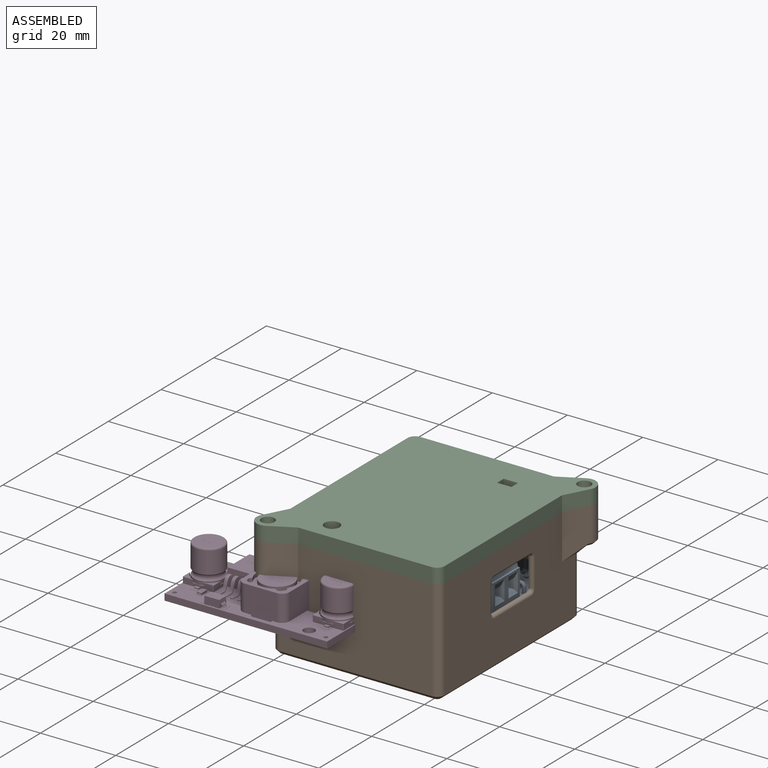
[diagram: assembled view]
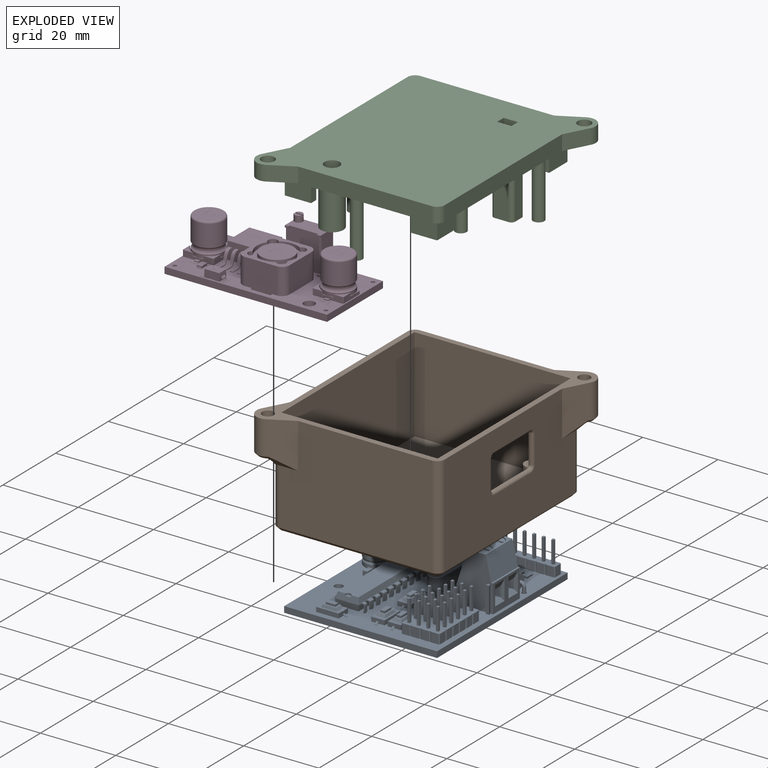
[diagram: exploded view]
GUIDED TOUR — FREECAD ASSEMBLY "case"

This assembly has 4 components, labeled P0..P3 below (a component is one placed body or linked part; the same part can appear more than once), held together by 0 modeled joints plus 6 derived contact edges. A joint is a constraint between two components; its type names the relative motion it leaves free:
  CONTACT — a derived adjacency edge — the two components touch in the source model (clearance under 2% of the assembly's diagonal); it is measured from the geometry, not a modeled constraint.
Axis/direction vectors are unit vectors and 'through' points are millimeter coordinates, both in the assembly's world frame.

MATES
  1. CONTACT "contact_0_1": P0 <-> P1, contact direction (0.000, 0.000, 1.000) through (4.40, 16.76, -1.55) mm (derived from contact, not a modeled constraint)
  2. CONTACT "contact_0_2": P0 <-> P2, contact direction (0.000, 0.000, 1.000) through (37.34, 43.98, 0.35) mm (derived from contact, not a modeled constraint)
  3. CONTACT "contact_0_3": P0 <-> P3, contact direction (0.000, 0.000, 1.000) through (10.20, 9.21, 2.23) mm (derived from contact, not a modeled constraint)
  4. CONTACT "contact_1_2": P1 <-> P2, contact direction (0.000, 0.000, 1.000) through (43.94, 1.51, 17.00) mm (derived from contact, not a modeled constraint)
  5. CONTACT "contact_1_3": P1 <-> P3, contact direction (-0.630, -0.776, 0.011) through (-2.20, -3.24, 8.05) mm (derived from contact, not a modeled constraint)
  6. CONTACT "contact_2_3": P2 <-> P3, contact direction (-0.630, -0.776, 0.011) through (3.61, 8.64, 11.85) mm (derived from contact, not a modeled constraint)

ASSEMBLY ORDER
  1. P0 — the base component [order heuristic]
  2. P1 [order heuristic]
  3. P2 [order heuristic]
  4. P3 [order heuristic]
Order-tag legend:
  [order heuristic] — this assembly is geometrically interlocked (no collision-free removal order exists), so components are listed in mate-graph order; insertion feasibility is not verified.

Of the 4 components, 2 carry a construction recipe — the FreeCAD feature program (sketches with constraints, then the solid features that consume them) that regenerates the part from scratch, quoted from this document or from the linked companion document it references; the rest are supplied as boundary geometry only. The tour below walks the components in assembly order: each is shown spotlighted twice — in the assembled view, then in the exploded view, where a leader line traces a displaced component back to its assembled socket (components that stay in place when exploded have no leader line; saturated green if recipe-attached, orange if geometry-only; every other component desaturated gray) — followed by its recipe or geometry summary and the mates that hold it.
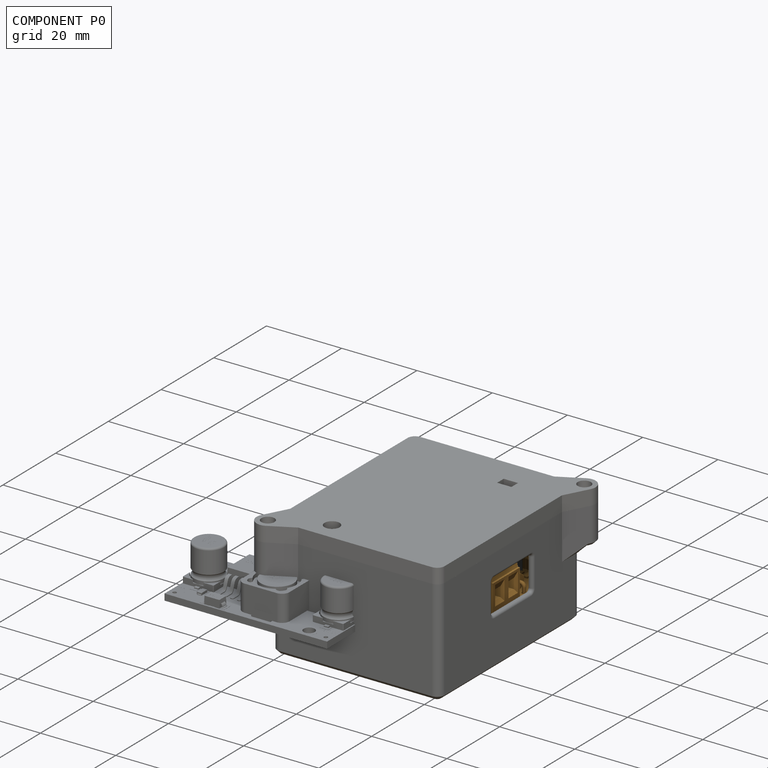
[diagram: component P0 — assembled]
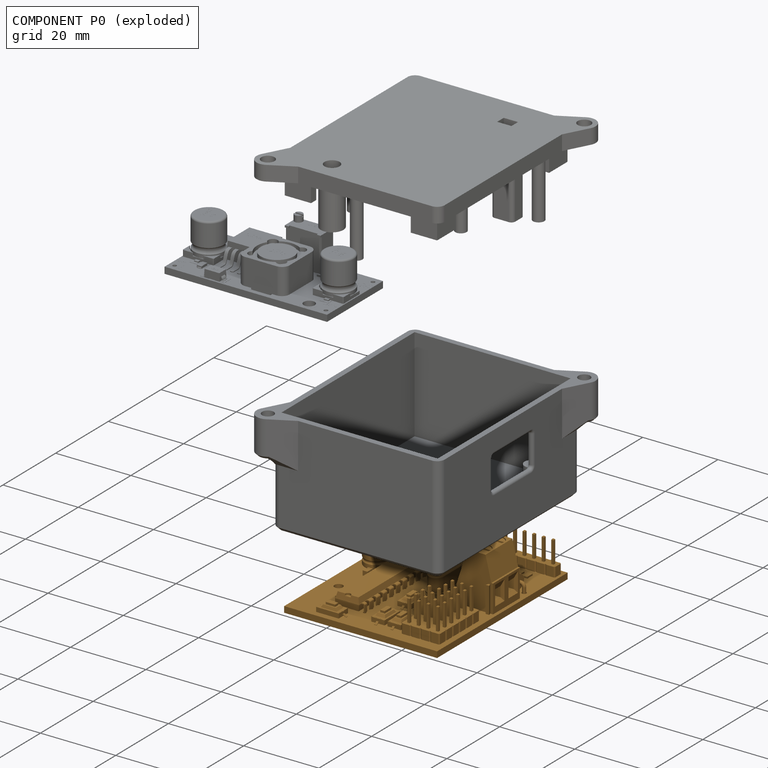
[diagram: component P0 — exploded]
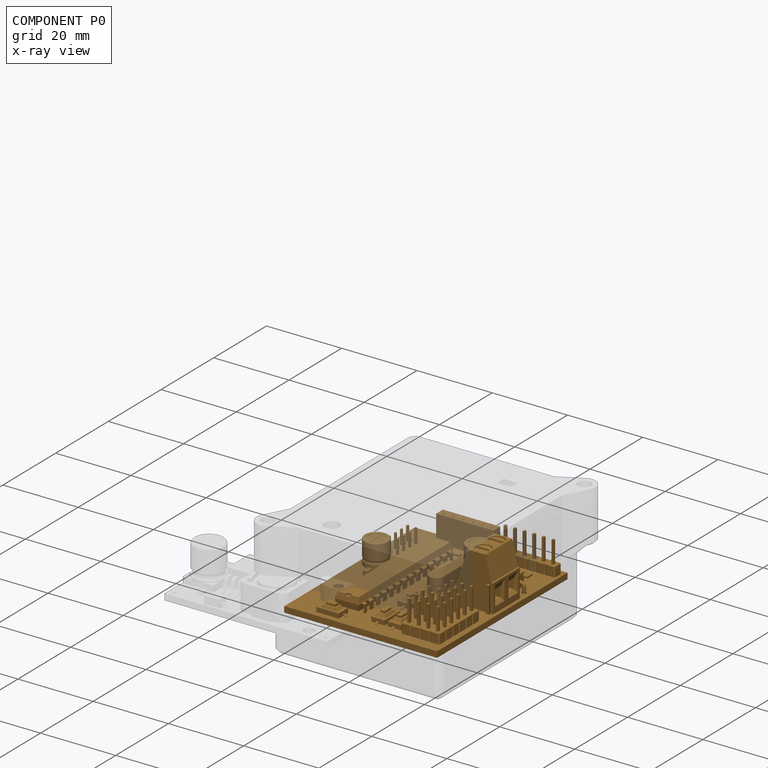
[diagram: component P0 — x-ray view]
COMPONENT P0 — geometry summary ("RC Reciever"; no construction recipe available for this part):
  bounding box: 49.5 x 40.6 x 20.5 mm
  tessellated surface: 113,986 triangles
  volume: 7017 mm^3 (17% of its bounding box)
Held by: resting contact with P1 (derived edge); resting contact with P2 (derived edge); resting contact with P3 (derived edge).
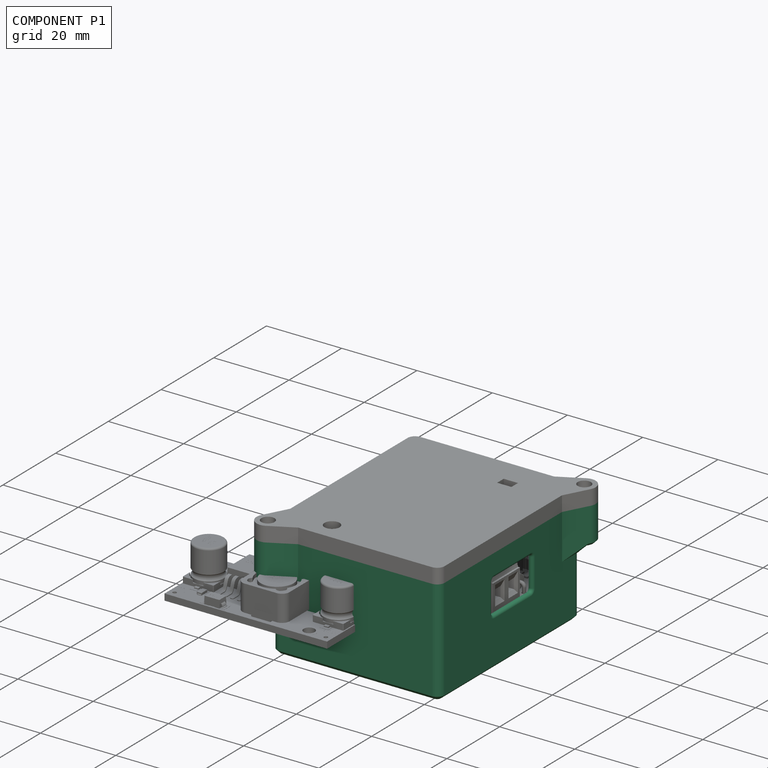
[diagram: component P1 — assembled]
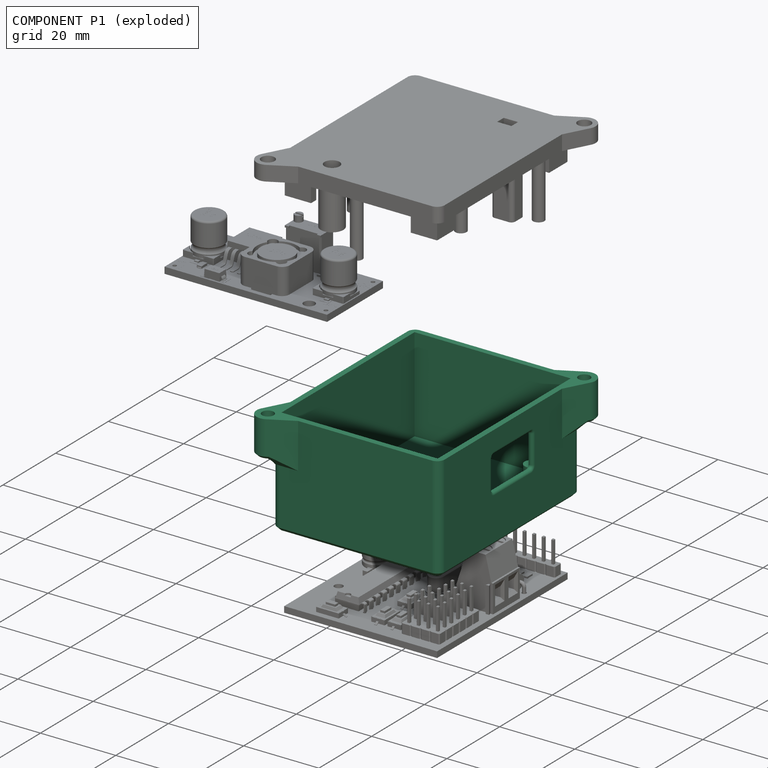
[diagram: component P1 — exploded]
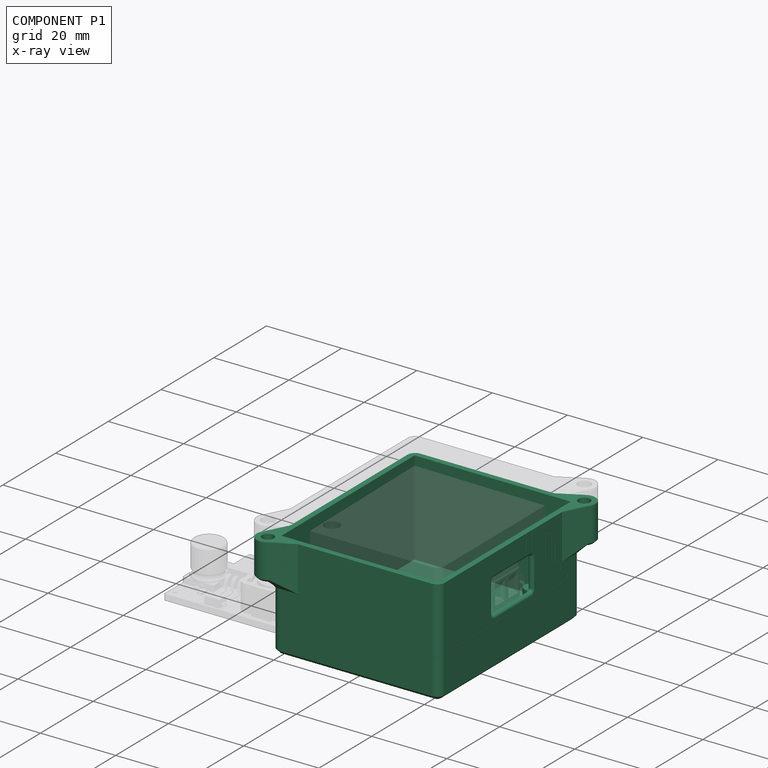
[diagram: component P1 — x-ray view]
COMPONENT P1 — recipe-attached ("Body", modeled in this document).
Held by: resting contact with P0 (derived edge); resting contact with P2 (derived edge); resting contact with P3 (derived edge).
Construction recipe (the document's own serialized feature program — sketch geometry with constraints, then the solid features built on it; lengths are millimeters unless a unit is written):

FEATURE [Sketcher::SketchObject] Sketch
  FullyConstrained = true
  MapMode = 5
  Support = -> [XY_Plane009]
  sketch-geometry (4):
    g0: LineSegment StartX=0 StartY=0 StartZ=0 EndX=44.5 EndY=0 EndZ=0
    g1: LineSegment StartX=44.5 StartY=0 StartZ=0 EndX=44.5 EndY=53.5 EndZ=0
    g2: LineSegment StartX=44.5 StartY=53.5 StartZ=0 EndX=0 EndY=53.5 EndZ=0
    g3: LineSegment StartX=0 StartY=53.5 StartZ=0 EndX=0 EndY=0 EndZ=0
  constraints (11):
    c: Coincident(g0,g1)
    c: Coincident(g1,g2)
    c: Coincident(g2,g3)
    c: Coincident(g3,g0)
    c: Horizontal(g0)
    c: Horizontal(g2)
    c: Vertical(g1)
    c: Vertical(g3)
    c: Coincident(g0,g-1)
    c: Distance(g2) = 44.5
    c: Distance(g1) = 53.5
FEATURE [PartDesign::Pad] Pad
  Direction = (1,1,1)
  Length = 3
  Length2 = 100
  Profile = -> Sketch
  Type = 0
FEATURE [Sketcher::SketchObject] Sketch001
  ExternalGeometry = -> [Pad]
  FullyConstrained = true
  MapMode = 5
  Placement = pos=(0,0,3) rot=(0,0,1;0rad)
  Support = -> [Pad]
  sketch-geometry (8):
    g0: LineSegment StartX=1.5 StartY=1.5 StartZ=0 EndX=43 EndY=1.5 EndZ=0
    g1: LineSegment StartX=43 StartY=1.5 StartZ=0 EndX=43 EndY=52 EndZ=0
    g2: LineSegment StartX=43 StartY=52 StartZ=0 EndX=1.5 EndY=52 EndZ=0
    g3: LineSegment StartX=1.5 StartY=52 StartZ=0 EndX=1.5 EndY=1.5 EndZ=0
    g4: LineSegment StartX=0 StartY=53.5 StartZ=0 EndX=44.5 EndY=53.5 EndZ=0
    g5: LineSegment StartX=44.5 StartY=53.5 StartZ=0 EndX=44.5 EndY=0 EndZ=0
    g6: LineSegment StartX=44.5 StartY=0 StartZ=0 EndX=0 EndY=0 EndZ=0
    g7: LineSegment StartX=0 StartY=0 StartZ=0 EndX=0 EndY=53.5 EndZ=0
  constraints (22):
    c: Coincident(g0,g1)
    c: Coincident(g1,g2)
    c: Coincident(g2,g3)
    c: Coincident(g3,g0)
    c: Horizontal(g0)
    c: Horizontal(g2)
    c: Vertical(g1)
    c: Vertical(g3)
    c: Distance(g2,g-4) = 1.5
    c: Distance(g2,g-3) = 1.5
    c: Distance(g0,g-6) = 1.5
    c: Distance(g0,g-5) = 1.5
    c: Coincident(g4,g5)
    c: Coincident(g5,g6)
    c: Coincident(g6,g7)
    c: Coincident(g7,g4)
    c: Horizontal(g4)
    c: Horizontal(g6)
    c: Vertical(g5)
    c: Vertical(g7)
    c: Coincident(g4,g-4)
    c: Coincident(g5,g-6)
FEATURE [PartDesign::Pad] Pad001
  BaseFeature = -> Pad
  Direction = (1,1,1)
  Length = 28
  Length2 = 100
  Profile = -> Sketch001
  Refine = true
  Reversed = true
  Type = 0
FEATURE [Sketcher::SketchObject] Sketch002
  FullyConstrained = false
  MapMode = 5
  Placement = pos=(0,0,0) rot=(1,0,0;3.14159rad)
  Support = -> [Pad001]
  sketch-geometry (8):
    g0: Circle CenterX=5.14503 CenterY=-22.9592 CenterZ=0 NormalX=0 NormalY=0 NormalZ=1 AngleXU=0 Radius=2
    g1: Circle CenterX=16.3884 CenterY=-29.3044 CenterZ=0 NormalX=0 NormalY=0 NormalZ=1 AngleXU=0 Radius=2
    g2: Circle CenterX=5.90153 CenterY=-43.5894 CenterZ=0 NormalX=0 NormalY=0 NormalZ=1 AngleXU=0 Radius=2
    g3: Circle CenterX=38.8461 CenterY=-17.3179 CenterZ=0 NormalX=0 NormalY=0 NormalZ=1 AngleXU=0 Radius=3
    g4: Circle CenterX=18.5073 CenterY=-14.3945 CenterZ=0 NormalX=0 NormalY=0 NormalZ=1 AngleXU=0 Radius=2
    g5: Circle CenterX=23.796 CenterY=-4.27424 CenterZ=0 NormalX=0 NormalY=0 NormalZ=1 AngleXU=0 Radius=2
    g6: Circle CenterX=38.9322 CenterY=-5.00552 CenterZ=0 NormalX=0 NormalY=0 NormalZ=1 AngleXU=0 Radius=2
    g7: Circle CenterX=38.5296 CenterY=-27.6784 CenterZ=0 NormalX=0 NormalY=0 NormalZ=1 AngleXU=0 Radius=2
  constraints (8):
    c: Diameter(g6) = 4
    c: Equal(g0,g1)
    c: Equal(g1,g2)
    c: Equal(g2,g4)
    c: Equal(g4,g5)
    c: Equal(g5,g6)
    c: Diameter(g3) = 6
    c: Equal(g7,g4)
FEATURE [PartDesign::Pad] Pad002
  BaseFeature = -> Pad001
  Direction = (1,1,1)
  Length = 6.5
  Length2 = 100
  Profile = -> Sketch002
  Type = 0
FEATURE [Sketcher::SketchObject] Sketch003
  ExternalGeometry = -> [Pad002]
  FullyConstrained = true
  MapMode = 5
  Placement = pos=(0,0,-6.5) rot=(1,0,0;3.14159rad)
  Support = -> [Pad002]
  sketch-geometry (1):
    g0: Circle CenterX=38.8461 CenterY=-17.3179 CenterZ=0 NormalX=0 NormalY=0 NormalZ=1 AngleXU=0 Radius=0.75
  constraints (2):
    c: Coincident(g0,g-3)
    c: Diameter(g0) = 1.5
FEATURE [PartDesign::Pocket] Pocket
  BaseFeature = -> Pad002
  Length = 8
  Length2 = 100
  Profile = -> Sketch003
  Type = 0
FEATURE [Sketcher::SketchObject] Sketch004
  ExternalGeometry = -> [Pocket]
  FullyConstrained = true
  MapMode = 5
  Placement = pos=(0,0,-25) rot=(1,0,0;3.14159rad)
  Support = -> [Pocket]
  sketch-geometry (12):
    g0: ArcOfCircle CenterX=45.1213 CenterY=0.62132 CenterZ=0 NormalX=0 NormalY=0 NormalZ=1 AngleXU=0 Radius=3 StartAngle=5.79662 EndAngle=8.34055
    g1: ArcOfCircle CenterX=-0.62132 CenterY=-54.1213 CenterZ=0 NormalX=0 NormalY=0 NormalZ=1 AngleXU=0 Radius=3 StartAngle=2.65503 EndAngle=5.19895
    g2: LineSegment StartX=44.5 StartY=0 StartZ=0 EndX=45.1213 EndY=0.62132 EndZ=0
    g3: LineSegment StartX=0 StartY=-53.5 StartZ=0 EndX=-0.62132 EndY=-54.1213 EndZ=0
    g4: LineSegment StartX=0.781459 StartY=-56.7732 StartZ=0 EndX=6.96907 EndY=-53.5 EndZ=0
    g5: LineSegment StartX=-3.27315 StartY=-52.7185 StartZ=0 EndX=0 EndY=-46.5309 EndZ=0
    g6: LineSegment StartX=47.7732 StartY=-0.781459 StartZ=0 EndX=44.5 EndY=-6.96907 EndZ=0
    g7: LineSegment StartX=43.7185 StartY=3.27315 StartZ=0 EndX=37.5309 EndY=0 EndZ=0
    g8: LineSegment StartX=0 StartY=-46.5309 StartZ=0 EndX=0 EndY=-53.5 EndZ=0
    g9: LineSegment StartX=0 StartY=-53.5 StartZ=0 EndX=6.96907 EndY=-53.5 EndZ=0
    g10: LineSegment StartX=37.5309 StartY=0 StartZ=0 EndX=44.5 EndY=0 EndZ=0
    g11: LineSegment StartX=44.5 StartY=0 StartZ=0 EndX=44.5 EndY=-6.96907 EndZ=0
  constraints (30):
    c: PointOnObject(g-5,g0)
    c: PointOnObject(g-6,g1)
    c: Equal(g1,g0)
    c: Diameter(g1) = 6
    c: Coincident(g2,g-4)
    c: Coincident(g2,g0)
    c: Angle(g-4,g2) = 2.35619
    c: Coincident(g3,g-8)
    c: Coincident(g3,g1)
    c: Angle(g-8,g3) = 2.35619
    c: PointOnObject(g4,g-7)
    c: PointOnObject(g5,g-8)
    c: PointOnObject(g6,g-4)
    c: PointOnObject(g7,g-3)
    c: Equal(g7,g6)
    c: Equal(g6,g5)
    c: Equal(g5,g4)
    c: Distance(g6) = 7
    c: Tangent(g0,g6) = 1.5708
    c: Tangent(g0,g7) = -1.5708
    c: Tangent(g1,g5) = 1.5708
    c: Tangent(g1,g4) = -1.5708
    c: Coincident(g8,g5)
    c: Coincident(g8,g3)
    c: Coincident(g9,g8)
    c: Coincident(g9,g4)
    c: Coincident(g10,g7)
    c: Coincident(g10,g2)
    c: Coincident(g11,g10)
    c: Coincident(g11,g6)
FEATURE [PartDesign::Pad] Pad003
  BaseFeature = -> Pocket
  Direction = (1,1,1)
  Length = 10
  Length2 = 100
  Profile = -> Sketch004
  Reversed = true
  Type = 0
FEATURE [PartDesign::Chamfer] Chamfer
  Angle = 45
  Base = -> Pad003 [Edge32,Edge18,Edge22,Edge29]
  BaseFeature = -> Pad003
  ChamferType = 0
  FlipDirection = false
  Refine = true
  Size = 2
  Size2 = 1
  SupportTransform = false
FEATURE [Sketcher::SketchObject] Sketch005
  ExternalGeometry = -> [Chamfer]
  FullyConstrained = true
  MapMode = 5
  Placement = pos=(0,0,-25) rot=(1,0,0;3.14159rad)
  Support = -> [Chamfer]
  sketch-geometry (2):
    g0: Circle CenterX=-0.62132 CenterY=-54.1213 CenterZ=0 NormalX=0 NormalY=0 NormalZ=1 AngleXU=0 Radius=1.55
    g1: Circle CenterX=45.1213 CenterY=0.62132 CenterZ=0 NormalX=0 NormalY=0 NormalZ=1 AngleXU=0 Radius=1.55
  constraints (4):
    c: Coincident(g0,g-4)
    c: Diameter(g0) = 3.1
    c: Coincident(g1,g-3)
    c: Diameter(g1) = 3.1
FEATURE [PartDesign::Pocket] Pocket001
  BaseFeature = -> Chamfer
  Length = 12
  Length2 = 100
  Profile = -> Sketch005
  Type = 0
FEATURE [PartDesign::Chamfer] Chamfer001
  Angle = 45
  Base = -> Pocket001 [Edge64,Edge54]
  BaseFeature = -> Pocket001
  ChamferType = 0
  FlipDirection = false
  Size = 1
  Size2 = 1
  SupportTransform = false
FEATURE [Sketcher::SketchObject] Sketch006
  FullyConstrained = false
  MapMode = 5
  Placement = pos=(0,0,-15) rot=(0,0,1;0rad)
  Support = -> [Chamfer001]
  sketch-geometry (8):
    g0: LineSegment StartX=-2.66547 StartY=56.4105 StartZ=0 EndX=-0.96287 EndY=56.4105 EndZ=0
    g1: LineSegment StartX=-0.96287 StartY=56.4105 StartZ=0 EndX=-0.96287 EndY=54.3115 EndZ=0
    g2: LineSegment StartX=-0.96287 StartY=54.3115 StartZ=0 EndX=-2.66547 EndY=54.3115 EndZ=0
    g3: LineSegment StartX=-2.66547 StartY=54.3115 StartZ=0 EndX=-2.66547 EndY=56.4105 EndZ=0
    g4: LineSegment StartX=45.2052 StartY=-0.882229 StartZ=0 EndX=47.4153 EndY=-0.882229 EndZ=0
    g5: LineSegment StartX=47.4153 StartY=-0.882229 StartZ=0 EndX=47.4153 EndY=-2.57907 EndZ=0
    g6: LineSegment StartX=47.4153 StartY=-2.57907 StartZ=0 EndX=45.2052 EndY=-2.57907 EndZ=0
    g7: LineSegment StartX=45.2052 StartY=-2.57907 StartZ=0 EndX=45.2052 EndY=-0.882229 EndZ=0
  constraints (16):
    c: Coincident(g0,g1)
    c: Coincident(g1,g2)
    c: Coincident(g2,g3)
    c: Coincident(g3,g0)
    c: Horizontal(g0)
    c: Horizontal(g2)
    c: Vertical(g1)
    c: Vertical(g3)
    c: Coincident(g4,g5)
    c: Coincident(g5,g6)
    c: Coincident(g6,g7)
    c: Coincident(g7,g4)
    c: Horizontal(g4)
    c: Horizontal(g6)
    c: Vertical(g5)
    c: Vertical(g7)
FEATURE [PartDesign::Pocket] Pocket002
  BaseFeature = -> Chamfer001
  Length = 5
  Length2 = 100
  Profile = -> Sketch006
  Refine = true
  Reversed = true
  Type = 0
FEATURE [PartDesign::Chamfer] Chamfer002
  Angle = 45
  Base = -> Pocket002 [Edge29,Edge95]
  BaseFeature = -> Pocket002
  ChamferType = 0
  FlipDirection = false
  Size = 0.4
  Size2 = 1
  SupportTransform = false
FEATURE [Sketcher::SketchObject] Sketch007
  ExternalGeometry = -> [Chamfer002]
  FullyConstrained = true
  MapMode = 5
  Placement = pos=(0,0,3) rot=(0,0,1;0rad)
  Support = -> [Chamfer002]
  sketch-geometry (12):
    g0: ArcOfCircle CenterX=42.5 CenterY=51.5 CenterZ=0 NormalX=0 NormalY=0 NormalZ=1 AngleXU=0 Radius=2 StartAngle=1.8e-15 EndAngle=1.5708
    g1: ArcOfCircle CenterX=2 CenterY=51.5 CenterZ=0 NormalX=0 NormalY=0 NormalZ=1 AngleXU=0 Radius=2 StartAngle=1.5708 EndAngle=3.14159
    g2: ArcOfCircle CenterX=2 CenterY=2 CenterZ=0 NormalX=0 NormalY=0 NormalZ=1 AngleXU=0 Radius=2 StartAngle=3.14159 EndAngle=4.71239
    g3: ArcOfCircle CenterX=42.5 CenterY=2 CenterZ=0 NormalX=0 NormalY=0 NormalZ=1 AngleXU=0 Radius=2 StartAngle=4.71239 EndAngle=6.28319
    g4: LineSegment StartX=42.5 StartY=0 StartZ=0 EndX=44.5 EndY=0 EndZ=0
    g5: LineSegment StartX=44.5 StartY=2 StartZ=0 EndX=44.5 EndY=0 EndZ=0
    g6: LineSegment StartX=44.5 StartY=51.5 StartZ=0 EndX=44.5 EndY=53.5 EndZ=0
    g7: LineSegment StartX=44.5 StartY=53.5 StartZ=0 EndX=42.5 EndY=53.5 EndZ=0
    g8: LineSegment StartX=0 StartY=53.5 StartZ=0 EndX=2 EndY=53.5 EndZ=0
    g9: LineSegment StartX=0 StartY=51.5 StartZ=0 EndX=0 EndY=53.5 EndZ=0
    g10: LineSegment StartX=0 StartY=2 StartZ=0 EndX=0 EndY=0 EndZ=0
    g11: LineSegment StartX=0 StartY=0 StartZ=0 EndX=2 EndY=1.528e-13 EndZ=0
  constraints (36):
    c: Coincident(g7,g0) = 1.5708
    c: Coincident(g6,g0) = 1.5708
    c: Coincident(g8,g1) = 1.5708
    c: Coincident(g9,g1) = 1.5708
    c: Coincident(g10,g2) = 1.5708
    c: Coincident(g11,g2) = 1.5708
    c: Coincident(g4,g3) = 1.5708
    c: Coincident(g5,g3) = 1.5708
    c: Distance(g6,g0) = 2
    c: PointOnObject(g6,g-5)
    c: PointOnObject(g7,g-3)
    c: PointOnObject(g9,g-4)
    c: Distance(g1,g8) = 2
    c: PointOnObject(g11,g-6)
    c: Distance(g2,g11) = 2
    c: Distance(g3,g4) = 2
    c: Coincident(g4,g-6)
    c: Horizontal(g4)
    c: Coincident(g5,g4)
    c: Vertical(g5)
    c: Coincident(g6,g-5)
    c: Coincident(g7,g6)
    c: Coincident(g8,g-4)
    c: Horizontal(g8)
    c: Coincident(g9,g8)
    c: Coincident(g10,g-1)
    c: Vertical(g10)
    c: Coincident(g11,g10)
    c: Distance(g8) = 2
    c: Equal(g8,g9)
    c: Equal(g9,g10)
    c: Equal(g10,g11)
    c: Equal(g11,g4)
    c: Equal(g4,g5)
    c: Equal(g5,g6)
    c: Equal(g6,g7)
FEATURE [PartDesign::Pocket] Pocket003
  BaseFeature = -> Chamfer002
  Length = 16
  Length2 = 100
  Profile = -> Sketch007
  Type = 0
FEATURE [PartDesign::Pocket] Pocket004
  BaseFeature = -> Pocket003
  Length = 12
  Length2 = 100
  Profile = -> Pocket003 [Face20]
  Type = 0
FEATURE [PartDesign::Pocket] Pocket005
  BaseFeature = -> Pocket004
  Length = 12
  Length2 = 100
  Profile = -> Pocket004 [Face36]
  Refine = true
  Type = 0
FEATURE [Sketcher::SketchObject] Sketch012
  ExternalGeometry = -> [Pocket005]
  FullyConstrained = false
  MapMode = 5
  Placement = pos=(0,0,0) rot=(0.57735,-0.57735,-0.57735;2.0944rad)
  Support = -> [Pocket005]
  sketch-geometry (4):
    g0: LineSegment StartX=-35.5 StartY=-10 StartZ=0 EndX=-20.1065 EndY=-10 EndZ=0
    g1: LineSegment StartX=-20.1065 StartY=-10 StartZ=0 EndX=-20.1065 EndY=-19 EndZ=0
    g2: LineSegment StartX=-20.1065 StartY=-19 StartZ=0 EndX=-35.5 EndY=-19 EndZ=0
    g3: LineSegment StartX=-35.5 StartY=-19 StartZ=0 EndX=-35.5 EndY=-10 EndZ=0
  constraints (11):
    c: Coincident(g0,g1)
    c: Coincident(g1,g2)
    c: Coincident(g2,g3)
    c: Coincident(g3,g0)
    c: Horizontal(g0)
    c: Horizontal(g2)
    c: Vertical(g1)
    c: Vertical(g3)
    c: Distance(g0,g-3) = 13
    c: Distance(g1) = 9
    c: Distance(g0,g-4) = 18
FEATURE [PartDesign::Pocket] Pocket009
  BaseFeature = -> Pocket005
  Length = 2
  Length2 = 100
  Profile = -> Sketch012
  Type = 0
FEATURE [PartDesign::Fillet] Fillet001
  Base = -> Pocket009 [Face38,Face37,Face36,Face35]
  BaseFeature = -> Pocket009
  Radius = 0.74
  SupportTransform = false
FEATURE [PartDesign::Chamfer] Chamfer003
  Angle = 45
  Base = -> Fillet001 [Edge39]
  BaseFeature = -> Fillet001
  ChamferType = 0
  FlipDirection = false
  Size = 1
  Size2 = 1
  SupportTransform = false
FEATURE [PartDesign::Body] Body
  Group = -> [Sketch,Pad,Sketch001,Pad001,Sketch002,Pad002,Sketch003,Pocket,Sketch004,Pad003,Chamfer,Sketch005,Pocket001,Chamfer001,Sketch006,Pocket002,Chamfer002,Sketch007,Pocket003,Pocket004,Pocket005,Sketch012,Pocket009,Fillet001,Chamfer003]
  Origin = -> Origin009
  Placement = pos=(44,0,-8) rot=(0,1,0;3.14159rad)
  Tip = -> Chamfer003
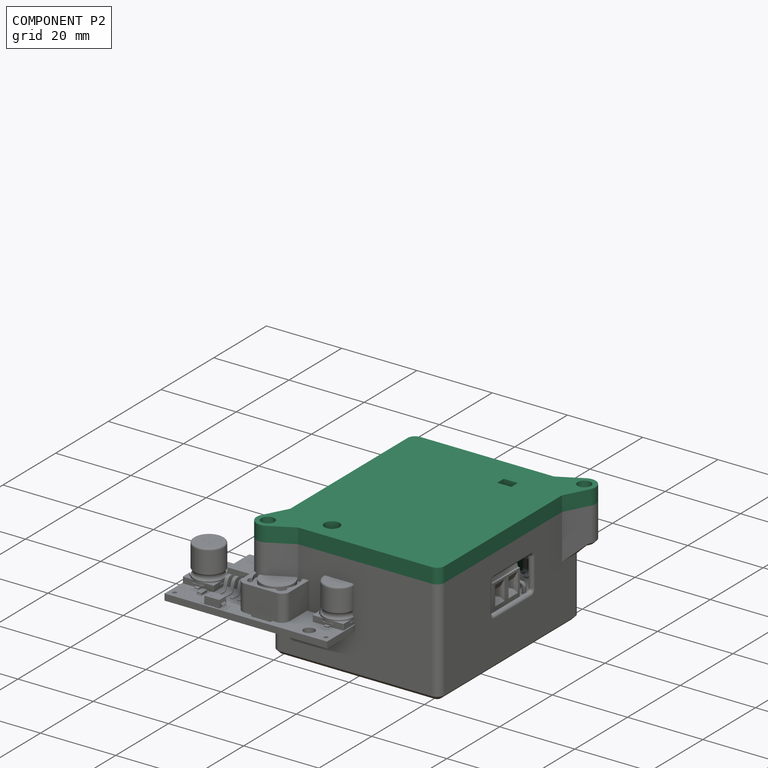
[diagram: component P2 — assembled]
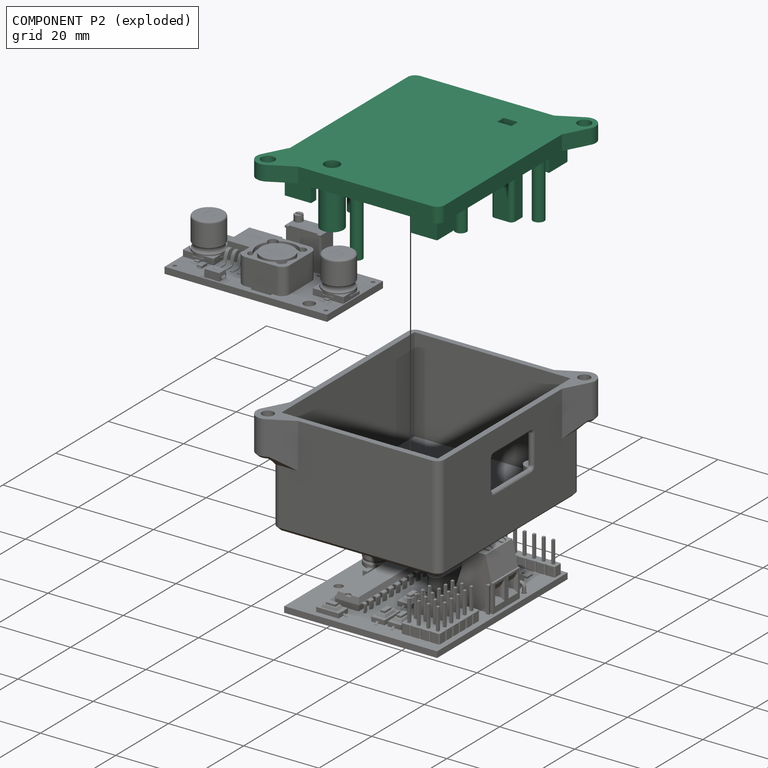
[diagram: component P2 — exploded]
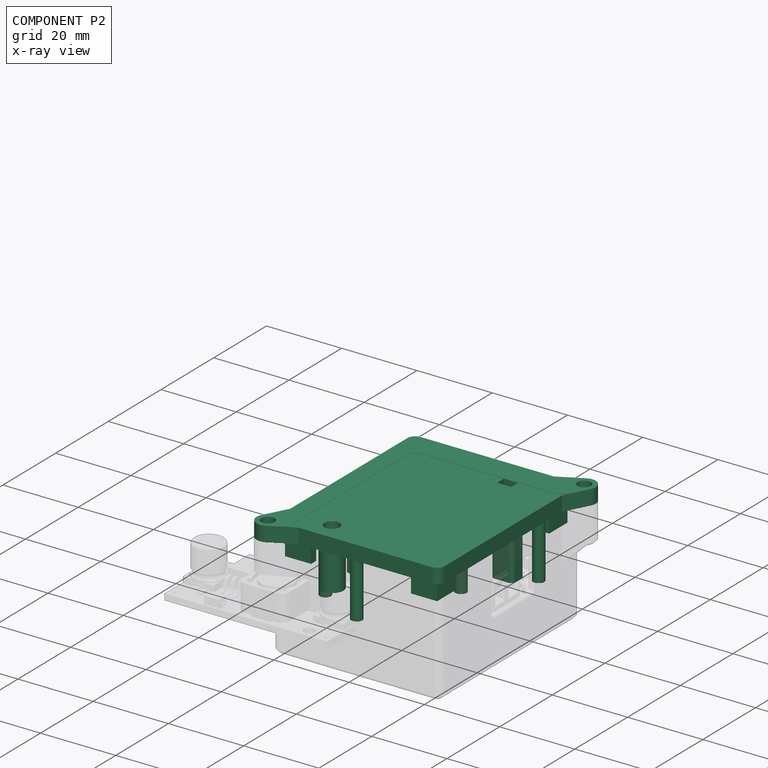
[diagram: component P2 — x-ray view]
COMPONENT P2 — recipe-attached ("Lit", modeled in this document).
Held by: resting contact with P0 (derived edge); resting contact with P1 (derived edge); resting contact with P3 (derived edge).
Construction recipe (the document's own serialized feature program — sketch geometry with constraints, then the solid features built on it; lengths are millimeters unless a unit is written):

FEATURE [Sketcher::SketchObject] Sketch008
  FullyConstrained = true
  MapMode = 5
  Support = -> [XY_Plane011]
  sketch-geometry (22):
    g0: LineSegment StartX=0 StartY=0 StartZ=0 EndX=44.5 EndY=0 EndZ=0
    g1: LineSegment StartX=44.5 StartY=0 StartZ=0 EndX=44.5 EndY=53.5 EndZ=0
    g2: LineSegment StartX=44.5 StartY=53.5 StartZ=0 EndX=0 EndY=53.5 EndZ=0
    g3: LineSegment StartX=0 StartY=53.5 StartZ=0 EndX=0 EndY=0 EndZ=0
    g4: LineSegment StartX=1.5 StartY=1.5 StartZ=0 EndX=43 EndY=1.5 EndZ=0
    g5: LineSegment StartX=43 StartY=1.5 StartZ=0 EndX=43 EndY=52 EndZ=0
    g6: LineSegment StartX=43 StartY=52 StartZ=0 EndX=1.5 EndY=52 EndZ=0
    g7: LineSegment StartX=1.5 StartY=52 StartZ=0 EndX=1.5 EndY=1.5 EndZ=0
    g8: ArcOfCircle CenterX=-0.622254 CenterY=-0.622254 CenterZ=0 NormalX=0 NormalY=0 NormalZ=1 AngleXU=0 Radius=3 StartAngle=2.6549 EndAngle=5.19908
    g9: ArcOfCircle CenterX=45.1223 CenterY=54.1223 CenterZ=0 NormalX=0 NormalY=0 NormalZ=1 AngleXU=0 Radius=3 StartAngle=5.7965 EndAngle=8.34067
    g10: LineSegment StartX=44.5 StartY=53.5 StartZ=0 EndX=45.1223 EndY=54.1223 EndZ=0
    g11: LineSegment StartX=0 StartY=0 StartZ=0 EndX=-0.622254 EndY=-0.622254 EndZ=0
    g12: LineSegment StartX=-3.27391 StartY=0.780852 StartZ=0 EndX=0 EndY=6.96806 EndZ=0
    g13: LineSegment StartX=0.780852 StartY=-3.27391 StartZ=0 EndX=6.96806 EndY=0 EndZ=0
    g14: LineSegment StartX=47.7739 StartY=52.7191 StartZ=0 EndX=44.5 EndY=46.5319 EndZ=0
    g15: LineSegment StartX=43.7191 StartY=56.7739 StartZ=0 EndX=37.5319 EndY=53.5 EndZ=0
    g16: LineSegment StartX=37.5319 StartY=53.5 StartZ=0 EndX=2 EndY=53.5 EndZ=0
    g17: LineSegment StartX=0 StartY=51.5 StartZ=0 EndX=0 EndY=6.96806 EndZ=0
    g18: LineSegment StartX=6.96806 StartY=0 StartZ=0 EndX=42.5 EndY=0 EndZ=0
    g19: LineSegment StartX=44.5 StartY=2 StartZ=0 EndX=44.5 EndY=46.5319 EndZ=0
    g20: ArcOfCircle CenterX=2 CenterY=51.5 CenterZ=0 NormalX=0 NormalY=0 NormalZ=1 AngleXU=0 Radius=2 StartAngle=1.5708 EndAngle=3.14159
    g21: ArcOfCircle CenterX=42.5 CenterY=2 CenterZ=0 NormalX=0 NormalY=0 NormalZ=1 AngleXU=0 Radius=2 StartAngle=4.71239 EndAngle=6.28319
  constraints (59):
    c: Coincident(g0,g1)
    c: Coincident(g1,g2)
    c: Coincident(g2,g3)
    c: Coincident(g3,g0)
    c: Horizontal(g0)
    c: Horizontal(g2)
    c: Vertical(g1)
    c: Vertical(g3)
    c: Distance(g3) = 53.5
    c: Distance(g0) = 44.5
    c: Coincident(g4,g5)
    c: Coincident(g5,g6)
    c: Coincident(g6,g7)
    c: Coincident(g7,g4)
    c: Horizontal(g4)
    c: Horizontal(g6)
    c: Vertical(g5)
    c: Vertical(g7)
    c: Distance(g6,g3) = 1.5
    c: Distance(g6,g2) = 1.5
    c: Distance(g4,g0) = 1.5
    c: Distance(g4,g1) = 1.5
    c: Coincident(g0,g-1)
    c: Equal(g8,g9)
    c: Diameter(g8) = 6
    c: Coincident(g10,g1)
    c: Coincident(g10,g9)
    c: Angle(g10,g2) = 2.35619
    c: Coincident(g11,g-1)
    c: Coincident(g11,g8)
    c: Angle(g3,g11) = 2.35619
    c: PointOnObject(g12,g3)
    c: PointOnObject(g13,g0)
    c: PointOnObject(g14,g1)
    c: PointOnObject(g15,g2)
    c: Equal(g15,g14)
    c: Equal(g14,g13)
    c: Equal(g13,g12)
    c: Distance(g12) = 7
    c: Tangent(g8,g12) = 1.5708
    c: Tangent(g8,g13) = -1.5708
    c: Tangent(g9,g15) = -1.5708
    c: Tangent(g9,g14) = 1.5708
    c: Equal(g11,g10)
    c: Distance(g10) = 0.88
    c: Coincident(g16,g15)
    c: Coincident(g17,g12)
    c: Coincident(g18,g13)
    c: Coincident(g19,g14)
    c: Tangent(g16,g20) = -1.5708
    c: Tangent(g17,g20) = -1.5708
    c: Distance(g16,g20) = 2
    c: PointOnObject(g16,g2)
    c: PointOnObject(g17,g3)
    c: Tangent(g19,g21) = -1.5708
    c: Tangent(g18,g21) = -1.5708
    c: Distance(g21,g18) = 2
    c: PointOnObject(g18,g0)
    c: PointOnObject(g19,g1)
FEATURE [PartDesign::Pad] Pad004
  Direction = (1,1,1)
  Length = 2
  Length2 = 100
  Profile = -> Sketch008
  Type = 0
FEATURE [Sketcher::SketchObject] Sketch009
  ExternalGeometry = -> [Pad004]
  FullyConstrained = true
  MapMode = 5
  Placement = pos=(0,0,0) rot=(1,0,0;3.14159rad)
  Support = -> [Pad004]
  sketch-geometry (8):
    g0: LineSegment StartX=1.5 StartY=-52 StartZ=0 EndX=43 EndY=-52 EndZ=0
    g1: LineSegment StartX=43 StartY=-52 StartZ=0 EndX=43 EndY=-1.5 EndZ=0
    g2: LineSegment StartX=43 StartY=-1.5 StartZ=0 EndX=1.5 EndY=-1.5 EndZ=0
    g3: LineSegment StartX=1.5 StartY=-1.5 StartZ=0 EndX=1.5 EndY=-52 EndZ=0
    g4: LineSegment StartX=2 StartY=-51.5 StartZ=0 EndX=42.5 EndY=-51.5 EndZ=0
    g5: LineSegment StartX=42.5 StartY=-51.5 StartZ=0 EndX=42.5 EndY=-2 EndZ=0
    g6: LineSegment StartX=42.5 StartY=-2 StartZ=0 EndX=2 EndY=-2 EndZ=0
    g7: LineSegment StartX=2 StartY=-2 StartZ=0 EndX=2 EndY=-51.5 EndZ=0
  constraints (24):
    c: Coincident(g0,g1)
    c: Coincident(g1,g2)
    c: Coincident(g2,g3)
    c: Coincident(g3,g0)
    c: Horizontal(g0)
    c: Horizontal(g2)
    c: Vertical(g1)
    c: Vertical(g3)
    c: Distance(g1,g-4) = 1.5
    c: Distance(g1,g-5) = 1.5
    c: Distance(g0,g-3) = 1.5
    c: Distance(g0,g-6) = 1.5
    c: Coincident(g4,g5)
    c: Coincident(g5,g6)
    c: Coincident(g6,g7)
    c: Coincident(g7,g4)
    c: Horizontal(g4)
    c: Horizontal(g6)
    c: Vertical(g5)
    c: Vertical(g7)
    c: Distance(g5,g2) = 0.5
    c: Distance(g5,g1) = 0.5
    c: Distance(g4,g3) = 0.5
    c: Distance(g4,g0) = 0.5
FEATURE [PartDesign::Pad] Pad005
  BaseFeature = -> Pad004
  Direction = (1,1,1)
  Length = 2
  Length2 = 100
  Profile = -> Sketch009
  Type = 0
FEATURE [Sketcher::SketchObject] Sketch010
  FullyConstrained = false
  MapMode = 5
  Placement = pos=(0,0,-2) rot=(1,0,0;3.14159rad)
  Support = -> [Pad005]
  sketch-geometry (14):
    g0: Circle CenterX=6.2131 CenterY=-11.4205 CenterZ=0 NormalX=0 NormalY=0 NormalZ=1 AngleXU=0 Radius=1.5
    g1: Circle CenterX=5.82073 CenterY=-48.9905 CenterZ=0 NormalX=0 NormalY=0 NormalZ=1 AngleXU=0 Radius=1.5
    g2: Circle CenterX=4.34932 CenterY=-24.8594 CenterZ=0 NormalX=0 NormalY=0 NormalZ=1 AngleXU=0 Radius=1.5
    g3: Circle CenterX=18.9285 CenterY=-5.17733 CenterZ=0 NormalX=0 NormalY=0 NormalZ=1 AngleXU=0 Radius=1.5
    g4: Circle CenterX=29.4083 CenterY=-29.7198 CenterZ=0 NormalX=0 NormalY=0 NormalZ=1 AngleXU=0 Radius=1.5
    g5: Circle CenterX=40.0379 CenterY=-44.0557 CenterZ=0 NormalX=0 NormalY=0 NormalZ=1 AngleXU=0 Radius=1.5
    g6: LineSegment StartX=28.2188 StartY=-47.2518 StartZ=0 EndX=34.0216 EndY=-47.2518 EndZ=0
    g7: LineSegment StartX=34.0216 StartY=-47.2518 StartZ=0 EndX=34.0216 EndY=-42.7518 EndZ=0
    g8: LineSegment StartX=34.0216 StartY=-42.7518 StartZ=0 EndX=28.2188 EndY=-42.7518 EndZ=0
    g9: LineSegment StartX=28.2188 StartY=-42.7518 StartZ=0 EndX=28.2188 EndY=-47.2518 EndZ=0
    g10: LineSegment StartX=29.2188 StartY=-43.7518 StartZ=0 EndX=33.0216 EndY=-43.7518 EndZ=0
    g11: LineSegment StartX=33.0216 StartY=-43.7518 StartZ=0 EndX=33.0216 EndY=-46.2518 EndZ=0
    g12: LineSegment StartX=33.0216 StartY=-46.2518 StartZ=0 EndX=29.2188 EndY=-46.2518 EndZ=0
    g13: LineSegment StartX=29.2188 StartY=-46.2518 StartZ=0 EndX=29.2188 EndY=-43.7518 EndZ=0
  constraints (27):
    c: Coincident(g6,g7)
    c: Coincident(g7,g8)
    c: Coincident(g8,g9)
    c: Coincident(g9,g6)
    c: Horizontal(g6)
    c: Horizontal(g8)
    c: Vertical(g7)
    c: Vertical(g9)
    c: Distance(g9) = 4.5
    c: Coincident(g10,g11)
    c: Coincident(g11,g12)
    c: Coincident(g12,g13)
    c: Coincident(g13,g10)
    c: Horizontal(g10)
    c: Horizontal(g12)
    c: Vertical(g11)
    c: Vertical(g13)
    c: DistanceX(g6) = 34.0216
    c: DistanceY(g6) = -47.2518
    c: DistanceX(g8) = 28.2188
    c: Distance(g10,g8) = 1
    c: Distance(g10,g7) = 1
    c: Distance(g12,g6) = 1
    c: Distance(g12,g9) = 1
    c: Equal(g0, g2-g5) x4
    c: Equal(g0,g1)
    c: Diameter(g0) = 3
FEATURE [PartDesign::Pad] Pad006
  BaseFeature = -> Pad005
  Direction = (1,1,1)
  Length = 14.7
  Length2 = 100
  Profile = -> Sketch010
  Type = 0
FEATURE [PartDesign::Pocket] Pocket006
  BaseFeature = -> Pad006
  Length = 1
  Length2 = 100
  Profile = -> Pad006 [Face35]
  Type = 0
FEATURE [PartDesign::Pocket] Pocket007
  BaseFeature = -> Pocket006
  Length = 5
  Length2 = 100
  Profile = -> Pocket006 [Face41]
  Type = 0
FEATURE [PartDesign::Fillet] Fillet
  Base = -> Pocket007 [Edge91,Edge94,Edge89,Edge92]
  BaseFeature = -> Pocket007
  Radius = 1
  SupportTransform = false
FEATURE [Sketcher::SketchObject] Sketch011
  FullyConstrained = false
  MapMode = 5
  Placement = pos=(0,0,2) rot=(0,0,1;0rad)
  Support = -> [Fillet]
  sketch-geometry (1):
    g0: Circle CenterX=12.286 CenterY=5.28153 CenterZ=0 NormalX=0 NormalY=0 NormalZ=1 AngleXU=0 Radius=2
  constraints (1):
    c: Diameter(g0) = 4
FEATURE [PartDesign::Pocket] Pocket008
  BaseFeature = -> Fillet
  Length = 4
  Length2 = 100
  Profile = -> Sketch011
  Type = 0
FEATURE [Sketcher::SketchObject] Sketch013
  ExternalGeometry = -> [Pocket008]
  FullyConstrained = true
  MapMode = 5
  Placement = pos=(0,0,2) rot=(0,0,1;0rad)
  Support = -> [Pocket008]
  sketch-geometry (2):
    g0: Circle CenterX=-0.622254 CenterY=-0.622254 CenterZ=0 NormalX=0 NormalY=0 NormalZ=1 AngleXU=0 Radius=1.75
    g1: Circle CenterX=45.1223 CenterY=54.1223 CenterZ=0 NormalX=0 NormalY=0 NormalZ=1 AngleXU=0 Radius=1.75
  constraints (4):
    c: Coincident(g0,g-3)
    c: Diameter(g0) = 3.5
    c: Coincident(g1,g-4)
    c: Equal(g1,g0)
FEATURE [PartDesign::Pocket] Pocket010
  BaseFeature = -> Pocket008
  Length = 5
  Length2 = 100
  Profile = -> Sketch013
  Type = 0
FEATURE [PartDesign::Pocket] Pocket011
  BaseFeature = -> Pocket010
  Length = 2
  Length2 = 100
  Profile = -> Pocket010 [Face1]
  Type = 0
FEATURE [PartDesign::Pad] Pad007
  BaseFeature = -> Pocket011
  Direction = (1,1,1)
  Length = 2
  Length2 = 100
  Profile = -> Pocket011 [Face5]
  Type = 0
FEATURE [PartDesign::Pad] Pad008
  BaseFeature = -> Pad007
  Direction = (1,1,1)
  Length = 2
  Length2 = 100
  Profile = -> Pad007 [Face75]
  Type = 0
FEATURE [PartDesign::Pad] Pad009
  BaseFeature = -> Pad008
  Direction = (1,1,1)
  Length = 2
  Length2 = 100
  Profile = -> Pad008 [Face73]
  Type = 0
FEATURE [PartDesign::Pad] Pad010
  BaseFeature = -> Pad009
  Direction = (1,1,1)
  Length = 2
  Length2 = 100
  Profile = -> Pad009 [Face72]
  Type = 0
FEATURE [PartDesign::Pad] Pad011
  BaseFeature = -> Pad010
  Direction = (1,1,1)
  Length = 2
  Length2 = 100
  Profile = -> Pad010 [Face3]
  Type = 0
FEATURE [PartDesign::Pad] Pad012
  BaseFeature = -> Pad011
  Direction = (1,1,1)
  Length = 2
  Length2 = 100
  Profile = -> Pad011 [Face71]
  Type = 0
FEATURE [PartDesign::Pad] Pad013
  BaseFeature = -> Pad012
  Direction = (1,1,1)
  Length = 2
  Length2 = 100
  Profile = -> Pad012 [Face72]
  Type = 0
FEATURE [PartDesign::Pad] Pad014
  BaseFeature = -> Pad013
  Direction = (1,1,1)
  Length = 5
  Length2 = 100
  Profile = -> Pad013 [Face75]
  Type = 0
FEATURE [Sketcher::SketchObject] Sketch014
  ExternalGeometry = -> [Pad014]
  FullyConstrained = true
  MapMode = 5
  Placement = pos=(0,0,0) rot=(1,0,0;3.14159rad)
  Support = -> [Pad014]
  sketch-geometry (2):
    g0: Circle CenterX=12.286 CenterY=-5.28153 CenterZ=0 NormalX=0 NormalY=0 NormalZ=1 AngleXU=0 Radius=3
    g1: Circle CenterX=12.286 CenterY=-5.28153 CenterZ=0 NormalX=0 NormalY=0 NormalZ=1 AngleXU=0 Radius=2
  constraints (5):
    c: Coincident(g0,g-3)
    c: Diameter(g-3) = 4
    c: Diameter(g0) = 6
    c: Coincident(g1,g0)
    c: Equal(g1,g-3)
FEATURE [PartDesign::Pad] Pad015
  BaseFeature = -> Pad014
  Direction = (1,1,1)
  Length = 13
  Length2 = 100
  Profile = -> Sketch014
  Type = 0
FEATURE [Sketcher::SketchObject] Sketch015
  ExternalGeometry = -> [Pad015]
  FullyConstrained = true
  MapMode = 5
  Placement = pos=(0,0,0) rot=(1,0,0;3.14159rad)
  Support = -> [Pad015]
  sketch-geometry (24):
    g0: LineSegment StartX=4 StartY=-49.5 StartZ=0 EndX=4 EndY=-44.5 EndZ=0
    g1: LineSegment StartX=4 StartY=-44.5 StartZ=0 EndX=2 EndY=-44.5 EndZ=0
    g2: LineSegment StartX=2 StartY=-44.5 StartZ=0 EndX=2 EndY=-51.5 EndZ=0
    g3: LineSegment StartX=2 StartY=-51.5 StartZ=0 EndX=9 EndY=-51.5 EndZ=0
    g4: LineSegment StartX=9 StartY=-51.5 StartZ=0 EndX=9 EndY=-49.5 EndZ=0
    g5: LineSegment StartX=9 StartY=-49.5 StartZ=0 EndX=4 EndY=-49.5 EndZ=0
    g6: LineSegment StartX=2 StartY=-2 StartZ=0 EndX=9 EndY=-2 EndZ=0
    g7: LineSegment StartX=9 StartY=-2 StartZ=0 EndX=9 EndY=-4 EndZ=0
    g8: LineSegment StartX=9 StartY=-4 StartZ=0 EndX=4 EndY=-4 EndZ=0
    g9: LineSegment StartX=4 StartY=-4 StartZ=0 EndX=4 EndY=-9 EndZ=0
    g10: LineSegment StartX=4 StartY=-9 StartZ=0 EndX=2 EndY=-9 EndZ=0
    g11: LineSegment StartX=2 StartY=-9 StartZ=0 EndX=2 EndY=-2 EndZ=0
    g12: LineSegment StartX=42.5 StartY=-51.5 StartZ=0 EndX=35.5 EndY=-51.5 EndZ=0
    g13: LineSegment StartX=35.5 StartY=-51.5 StartZ=0 EndX=35.5 EndY=-49.5 EndZ=0
    g14: LineSegment StartX=35.5 StartY=-49.5 StartZ=0 EndX=40.5 EndY=-49.5 EndZ=0
    g15: LineSegment StartX=40.5 StartY=-49.5 StartZ=0 EndX=40.5 EndY=-44.5 EndZ=0
    g16: LineSegment StartX=40.5 StartY=-44.5 StartZ=0 EndX=42.5 EndY=-44.5 EndZ=0
    g17: LineSegment StartX=42.5 StartY=-44.5 StartZ=0 EndX=42.5 EndY=-51.5 EndZ=0
    g18: LineSegment StartX=42.5 StartY=-2 StartZ=0 EndX=35.5 EndY=-2 EndZ=0
    g19: LineSegment StartX=35.5 StartY=-2 StartZ=0 EndX=35.5 EndY=-4 EndZ=0
    g20: LineSegment StartX=35.5 StartY=-4 StartZ=0 EndX=40.5 EndY=-4 EndZ=0
    g21: LineSegment StartX=40.5 StartY=-4 StartZ=0 EndX=40.5 EndY=-9 EndZ=0
    g22: LineSegment StartX=40.5 StartY=-9 StartZ=0 EndX=42.5 EndY=-9 EndZ=0
    g23: LineSegment StartX=42.5 StartY=-9 StartZ=0 EndX=42.5 EndY=-2 EndZ=0
  constraints (68):
    c: Coincident(g0,g1)
    c: Coincident(g1,g2)
    c: Horizontal(g1)
    c: Vertical(g0)
    c: Vertical(g2)
    c: Coincident(g3,g4)
    c: Coincident(g4,g5)
    c: Horizontal(g3)
    c: Horizontal(g5)
    c: Vertical(g4)
    c: Coincident(g0,g5)
    c: Distance(g5) = 5
    c: Distance(g0) = 5
    c: Distance(g4) = 2
    c: Distance(g1) = 2
    c: Coincident(g2,g3)
    c: Coincident(g2,g-4)
    c: Coincident(g6,g-6)
    c: PointOnObject(g6,g-6)
    c: Coincident(g7,g6)
    c: Vertical(g7)
    c: Coincident(g8,g7)
    c: Horizontal(g8)
    c: Coincident(g9,g8)
    c: Vertical(g9)
    c: Coincident(g10,g9)
    c: PointOnObject(g10,g-3)
    c: Horizontal(g10)
    c: Coincident(g11,g10)
    c: Coincident(g11,g6)
    c: Distance(g7) = 2
    c: Distance(g10) = 2
    c: Distance(g8) = 5
    c: Distance(g9) = 5
    c: Coincident(g12,g-7)
    c: PointOnObject(g12,g-4)
    c: Coincident(g13,g12)
    c: Vertical(g13)
    c: Coincident(g14,g13)
    c: Horizontal(g14)
    c: Coincident(g15,g14)
    c: Vertical(g15)
    c: Coincident(g16,g15)
    c: PointOnObject(g16,g-7)
    c: Horizontal(g16)
    c: Coincident(g17,g16)
    c: Coincident(g17,g12)
    c: Distance(g13) = 2
    c: Distance(g14) = 5
    c: Distance(g15) = 5
    c: Distance(g16) = 2
    c: Coincident(g18,g-7)
    c: Horizontal(g18)
    c: Coincident(g19,g18)
    c: Vertical(g19)
    c: Coincident(g20,g19)
    c: Horizontal(g20)
    c: Coincident(g21,g20)
    c: Vertical(g21)
    c: Coincident(g22,g21)
    c: PointOnObject(g22,g-7)
    c: Horizontal(g22)
    c: Coincident(g23,g22)
    c: Coincident(g23,g18)
    c: Distance(g19) = 2
    c: Distance(g20) = 5
    c: Distance(g22) = 2
    c: Distance(g21) = 5
FEATURE [PartDesign::Pad] Pad016
  BaseFeature = -> Pad015
  Direction = (1,1,1)
  Length = 7
  Length2 = 100
  Profile = -> Sketch015
  Type = 0
FEATURE [PartDesign::Pocket] Pocket012
  BaseFeature = -> Pad016
  Length = 3
  Length2 = 100
  Profile = -> Pad016 [Face98]
  Refine = true
  Type = 0
FEATURE [PartDesign::Body] Body001  label="Lit"
  Group = -> [Sketch008,Pad004,Sketch009,Pad005,Sketch010,Pad006,Pocket006,Pocket007,Fillet,Sketch011,Pocket008,Sketch013,Pocket010,Pocket011,Pad007,Pad008,Pad009,Pad010,Pad011,Pad012,Pad013,Pad014,Sketch014,Pad015,Sketch015,Pad016,Pocket012]
  Origin = -> Origin011
  Placement = pos=(-0.5,0,19) rot=(0,0,1;0rad)
  Tip = -> Pocket012
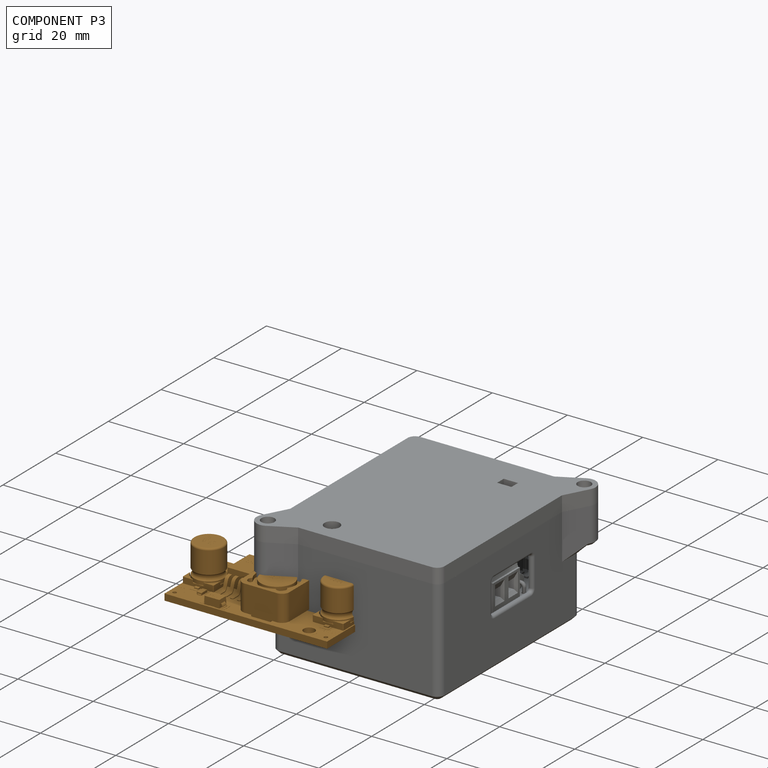
[diagram: component P3 — assembled]
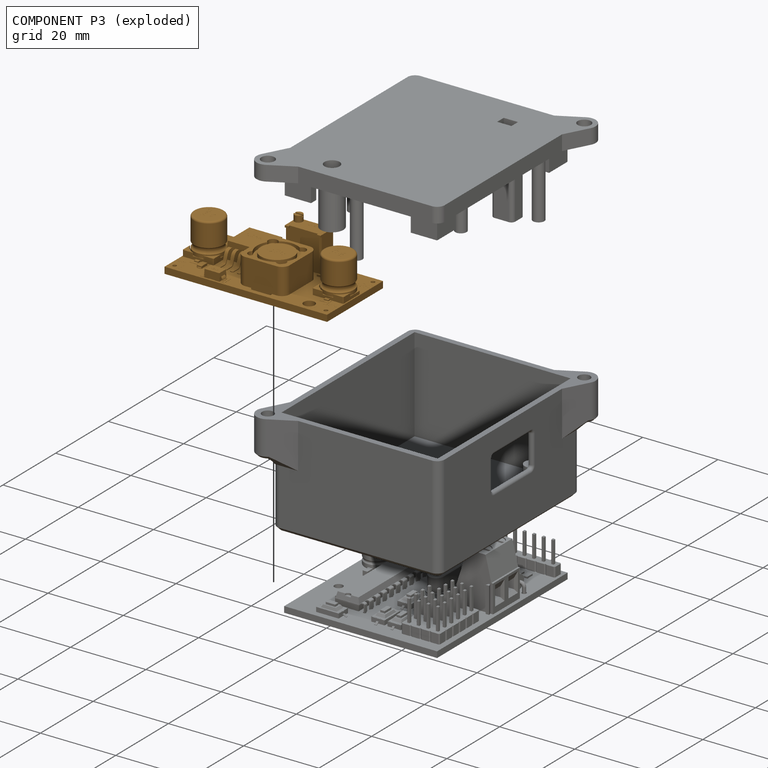
[diagram: component P3 — exploded]
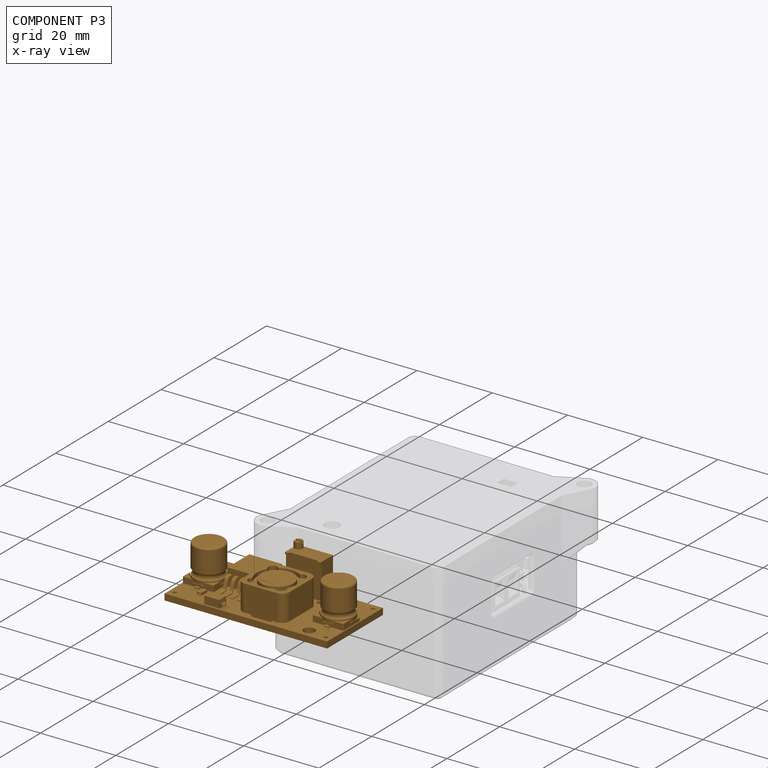
[diagram: component P3 — x-ray view]
COMPONENT P3 — geometry summary ("converterLM2596"; no construction recipe available for this part):
  bounding box: 43.2 x 21.2 x 15.2 mm
  tessellated surface: 68,188 triangles
  volume: 4347 mm^3 (31% of its bounding box)
Held by: resting contact with P0 (derived edge); resting contact with P1 (derived edge); resting contact with P2 (derived edge).
PROVENANCE & LICENSES
Assembly and component geometry: a FreeCAD (.FCStd) document from a public repository crawl; components, placements and joints were extracted with FreeCAD and each solid tessellated.
Construction recipes: the document's own serialized feature recipes (and, for linked parts, the recipes of companion documents from the same project).
License: apache-2.0.
Joints: native FreeCAD joints and A2plus constraints are mapped to standard mate types; edges marked 'derived from contact' connect touching components and are measured from the geometry, not modeled.
Verification: 2 of this assembly's 4 components carry a construction recipe (2 from this document itself); the rest are geometry-only. Every component's tessellation passed the extraction mesh gates (mesh-volume checksum against the B-rep where available, bounding-box inflation <= 2%).
Renders: orthographic iso camera (az 35 / el 25); the floor grid conveys scale (grid pitch printed in each image; no ruler). In the exploded view each component is displaced by its stored offset vector: the offsets alone carry the explosion direction (mate normal/axis signs are not orientation cues and do not encode it), and separation distances are assigned per mate-chain, not proportionally to assembly-order depth.
